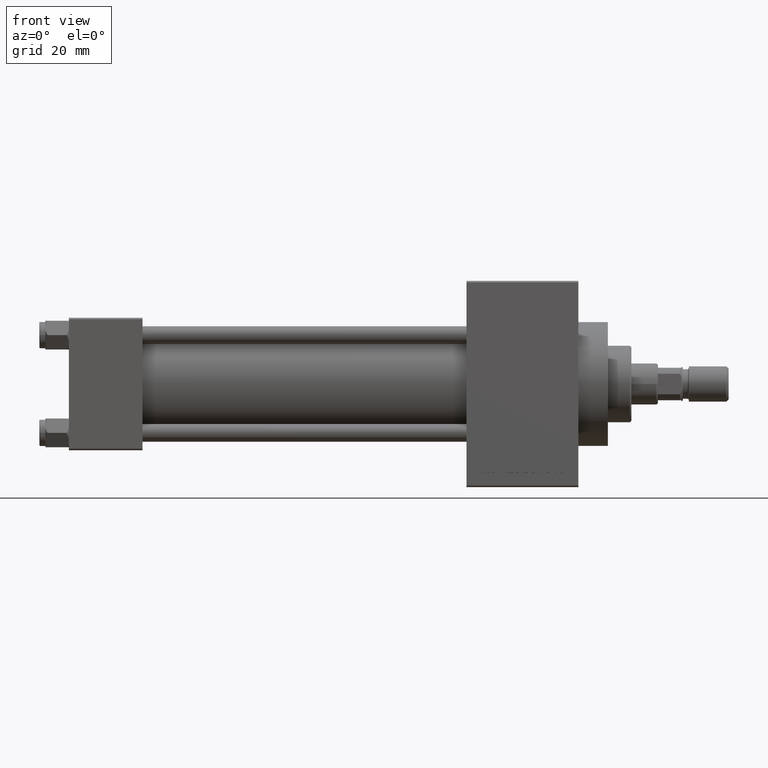
[diagram: clean part render]
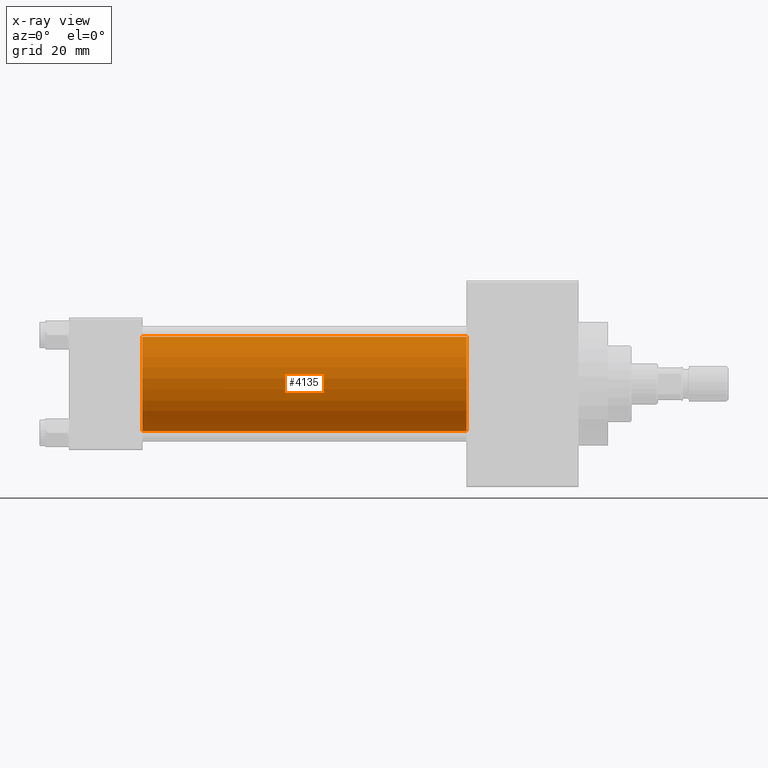
[diagram: x-ray — body ghosted, one internal face saturated and labeled with its STEP entity id]
A machine part, front view, then the same camera in x-ray: the body is ghosted and one INTERNAL B-rep face — a face not visible from any outside direction — is saturated and labeled: STEP entity #4135.
In plain terms, the highlighted cylindrical surface (partial cylindrical patch) has radius 16 mm, axis along (-1, -0, -0).
Its self-contained STEP definition (entity closure, byte-faithful):
#889 = AXIS2_PLACEMENT_3D ( 'NONE', #43662, #10544, #25284 ) ;
#4135 = ADVANCED_FACE ( 'NONE', ( #19580 ), #22735, .F. ) ;
#4731 = EDGE_CURVE ( 'NONE', #42572, #24200, #24130, .T. ) ;
#5075 = CARTESIAN_POINT ( 'NONE',  ( 135.0000000000000000, -2.602085213965210642E-15, 0.000000000000000000 ) ) ;
#6607 = CARTESIAN_POINT ( 'NONE',  ( 25.00000000000000000, -2.602085213965210642E-15, 0.000000000000000000 ) ) ;
#9203 = CIRCLE ( 'NONE', #13064, 16.00000000000000000 ) ;
#10544 = DIRECTION ( 'NONE',  ( 1.000000000000000000, 0.000000000000000000, 0.000000000000000000 ) ) ;
#11642 = ORIENTED_EDGE ( 'NONE', *, *, #29128, .F. ) ;
#13058 = EDGE_CURVE ( 'NONE', #40000, #42572, #44142, .T. ) ;
#13064 = AXIS2_PLACEMENT_3D ( 'NONE', #6607, #46991, #39737 ) ;
#14508 = AXIS2_PLACEMENT_3D ( 'NONE', #5075, #37967, #15716 ) ;
#15716 = DIRECTION ( 'NONE',  ( 0.000000000000000000, 0.000000000000000000, 1.000000000000000000 ) ) ;
#16063 = CARTESIAN_POINT ( 'NONE',  ( 25.00000000000000000, -2.602085213965210642E-15, 16.00000000000000000 ) ) ;
#17390 = VERTEX_POINT ( 'NONE', #16063 ) ;
#18498 = CARTESIAN_POINT ( 'NONE',  ( 25.00000000000000000, -6.426503353294456087E-16, -16.00000000000000000 ) ) ;
#19138 = VECTOR ( 'NONE', #28690, 1000.000000000000000 ) ;
#19580 = FACE_OUTER_BOUND ( 'NONE', #24141, .T. ) ;
#20273 = DIRECTION ( 'NONE',  ( -1.000000000000000000, -0.000000000000000000, -0.000000000000000000 ) ) ;
#22532 = ORIENTED_EDGE ( 'NONE', *, *, #25853, .F. ) ;
#22735 = CYLINDRICAL_SURFACE ( 'NONE', #14508, 16.00000000000000000 ) ;
#24130 = LINE ( 'NONE', #35736, #36907 ) ;
#24141 = EDGE_LOOP ( 'NONE', ( #39789, #44532, #11642, #22532 ) ) ;
#24200 = VERTEX_POINT ( 'NONE', #18498 ) ;
#25284 = DIRECTION ( 'NONE',  ( 0.000000000000000000, 0.000000000000000000, -1.000000000000000000 ) ) ;
#25853 = EDGE_CURVE ( 'NONE', #40000, #17390, #43668, .T. ) ;
#26851 = CARTESIAN_POINT ( 'NONE',  ( 135.0000000000000000, -2.602085213965210642E-15, 16.00000000000000000 ) ) ;
#28690 = DIRECTION ( 'NONE',  ( -1.000000000000000000, -0.000000000000000000, -0.000000000000000000 ) ) ;
#29128 = EDGE_CURVE ( 'NONE', #17390, #24200, #9203, .T. ) ;
#34894 = CARTESIAN_POINT ( 'NONE',  ( 135.0000000000000000, -6.426503353294456087E-16, -16.00000000000000000 ) ) ;
#35736 = CARTESIAN_POINT ( 'NONE',  ( 135.0000000000000000, -6.426503353294456087E-16, -16.00000000000000000 ) ) ;
#36907 = VECTOR ( 'NONE', #20273, 1000.000000000000000 ) ;
#37967 = DIRECTION ( 'NONE',  ( -1.000000000000000000, -0.000000000000000000, -0.000000000000000000 ) ) ;
#39737 = DIRECTION ( 'NONE',  ( 0.000000000000000000, 0.000000000000000000, -1.000000000000000000 ) ) ;
#39789 = ORIENTED_EDGE ( 'NONE', *, *, #13058, .T. ) ;
#39815 = CARTESIAN_POINT ( 'NONE',  ( 135.0000000000000000, -2.602085213965210642E-15, 16.00000000000000000 ) ) ;
#40000 = VERTEX_POINT ( 'NONE', #26851 ) ;
#42572 = VERTEX_POINT ( 'NONE', #34894 ) ;
#43662 = CARTESIAN_POINT ( 'NONE',  ( 135.0000000000000000, -2.602085213965210642E-15, 0.000000000000000000 ) ) ;
#43668 = LINE ( 'NONE', #39815, #19138 ) ;
#44142 = CIRCLE ( 'NONE', #889, 16.00000000000000000 ) ;
#44532 = ORIENTED_EDGE ( 'NONE', *, *, #4731, .T. ) ;
#46991 = DIRECTION ( 'NONE',  ( 1.000000000000000000, 0.000000000000000000, 0.000000000000000000 ) ) ;